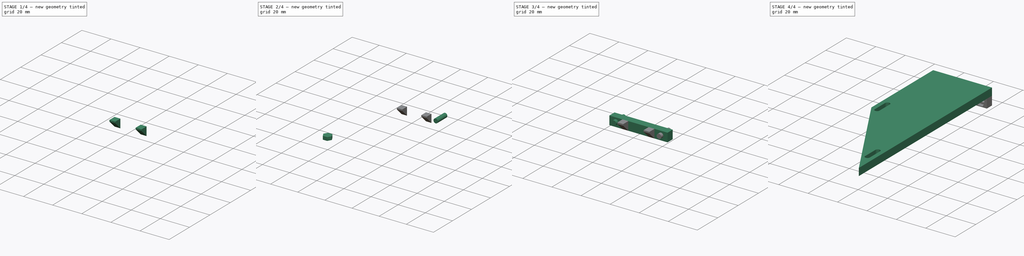
[diagram: build sequence overview — one tinted view per stage of 4, left to right]
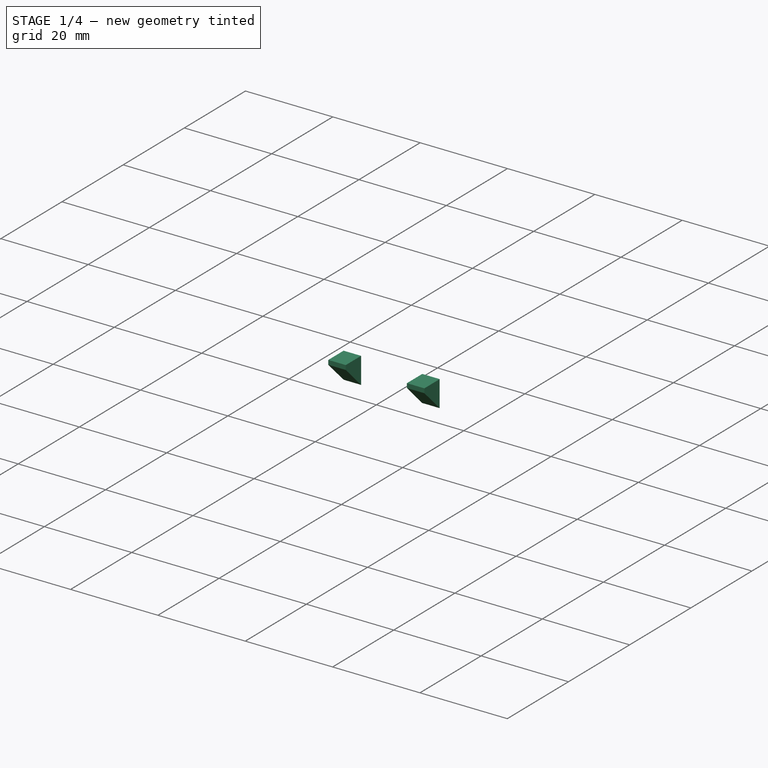
[diagram: stage 1 of 4 — iso view after this stage's code; geometry added in this stage tinted green]
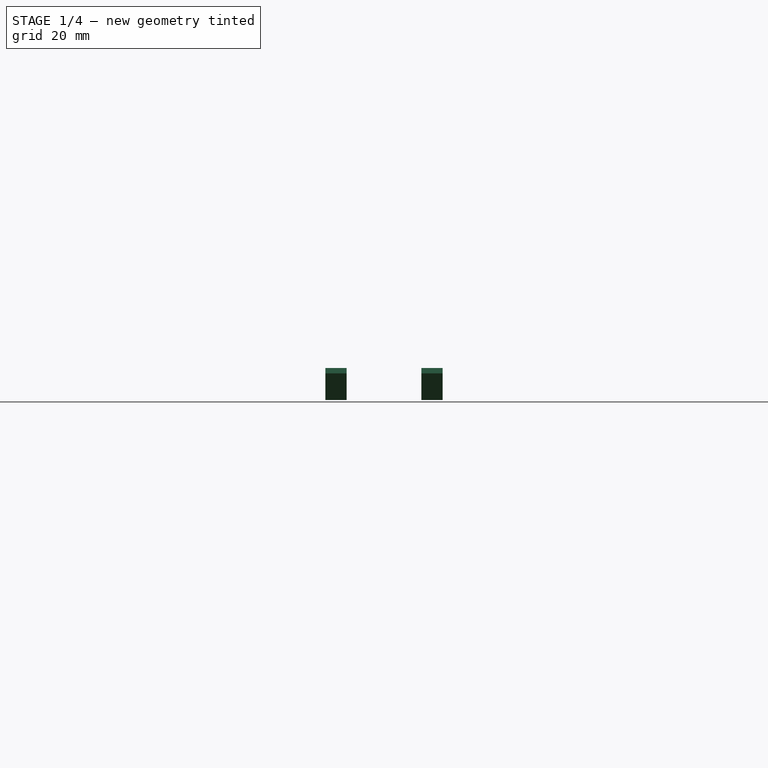
[diagram: stage 1 of 4 — front view after this stage's code; geometry added in this stage tinted green]
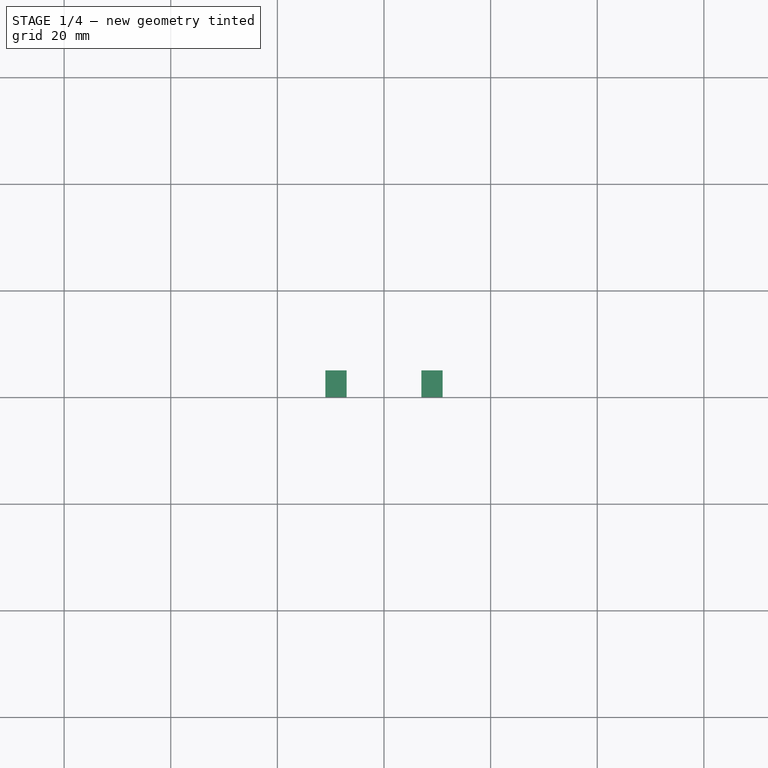
[diagram: stage 1 of 4 — top view after this stage's code; geometry added in this stage tinted green]
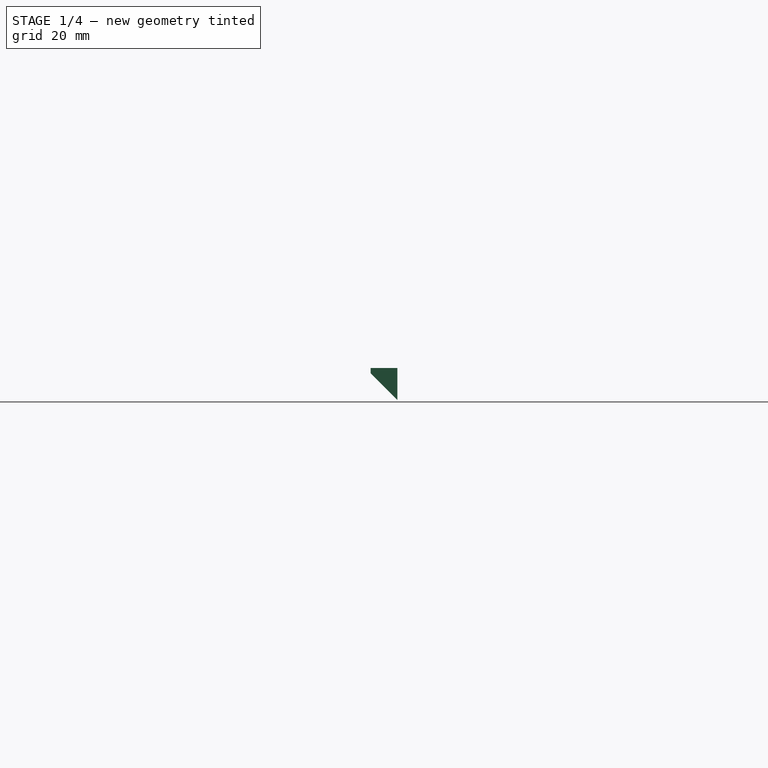
[diagram: stage 1 of 4 — right view after this stage's code; geometry added in this stage tinted green]
FCSTD DOCUMENT  (FreeCAD 0.18R14090 (Git))
Label: ExtruderDriveHolder3_Alt
License: All rights reserved
LicenseURL: http://en.wikipedia.org/wiki/All_rights_reserved
objects: Part::Box×3, Part::MultiFuse×3, Sketcher::SketchObject×2, PartDesign::Pad×2, PartDesign::Body×2, PartDesign::FeatureBase×2, Part::Cylinder×1, Part::Cut×1, Part::Chamfer×1, App::Part×1, Part::FeaturePython×1
note: 20 computed .brp shape members not serialized (recipe doc carries the construction recipe); baked Part::Feature solids carry a one-line shape summary decoded from their .brp

FEATURE [Part::Box] Box  label="StiffenerCube1"
  AttacherType = Attacher::AttachEngine3D
  Height = 6
  Length = 4
  Placement = pos=(9,60,-6) rot=(0,0,1;0rad)
  Width = 5
FEATURE [Part::Box] Box002  label="StiffenerCube2"
  AttacherType = Attacher::AttachEngine3D
  Height = 6
  Length = 4
  Placement = pos=(27,60,-6) rot=(0,0,1;0rad)
  Width = 5
FEATURE [Part::MultiFuse] Fusion001  label="StiffenerFusion"
  Shapes = -> [Box,Box002]
FEATURE [Part::Chamfer] Chamfer  label="StiffenerChamfer"
  Base = -> Fusion001
  Edges = 2 edges r=4.99: [Edge9,Edge21]
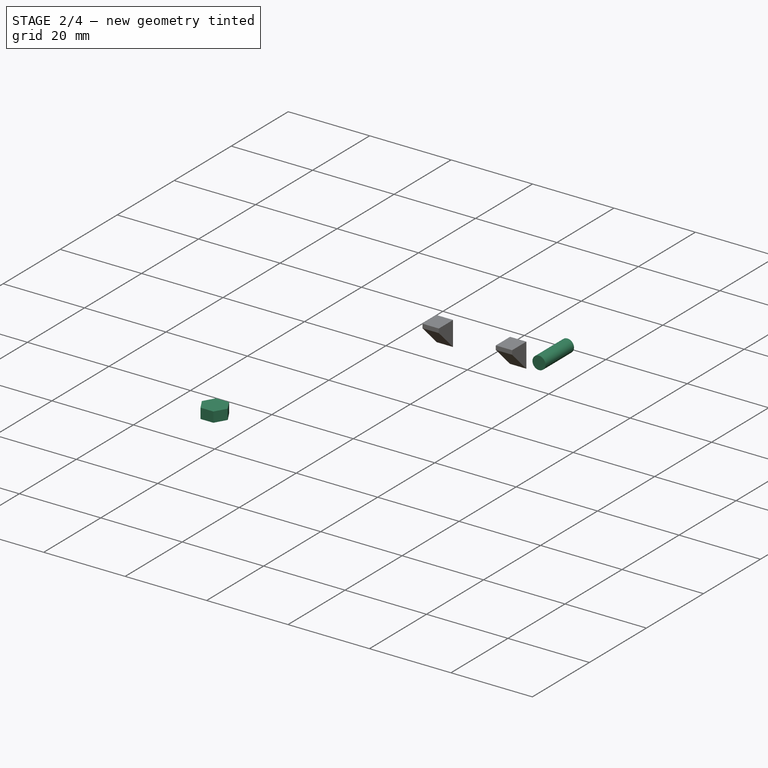
[diagram: stage 2 of 4 — iso view after this stage's code; geometry added in this stage tinted green]
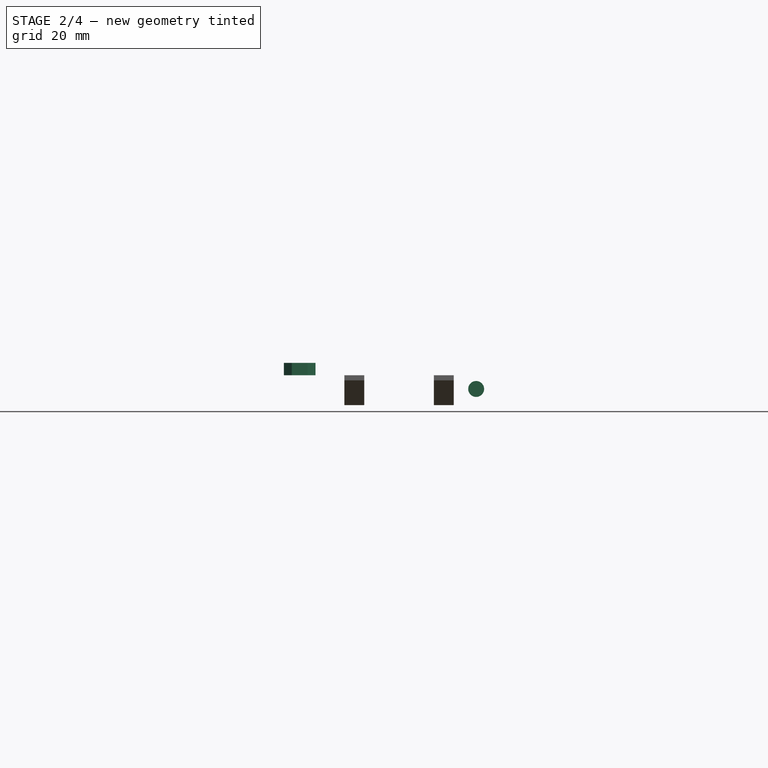
[diagram: stage 2 of 4 — front view after this stage's code; geometry added in this stage tinted green]
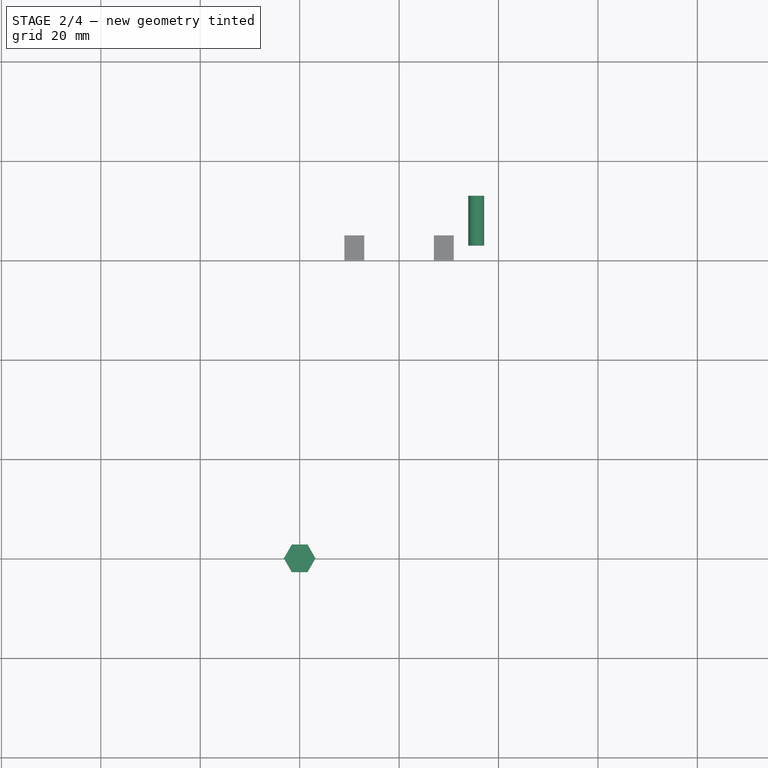
[diagram: stage 2 of 4 — top view after this stage's code; geometry added in this stage tinted green]
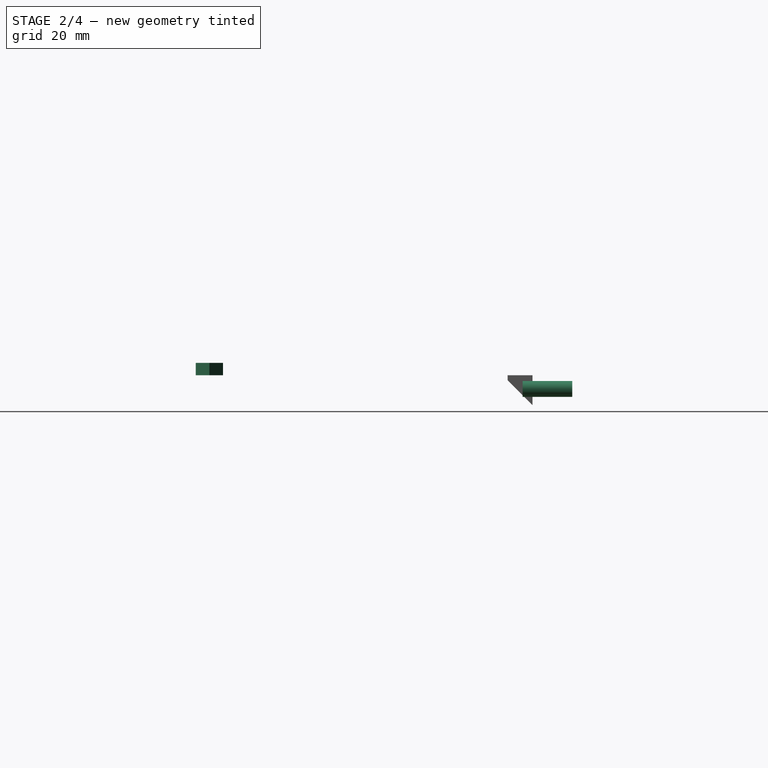
[diagram: stage 2 of 4 — right view after this stage's code; geometry added in this stage tinted green]
FEATURE [Part::Cylinder] Cylinder001  label="HolderClipScrewHole1"
  Angle = 360
  AttacherType = Attacher::AttachEngine3D
  Height = 10
  Placement = pos=(4.5,73,-2.75) rot=(1,0,0;1.5708rad)
  Radius = 1.6
FEATURE [Sketcher::SketchObject] Sketch002  label="NutBaseSketch"
  MapMode = 5
  Support = -> [XY_Plane002]
  sketch-geometry (7):
    g0: LineSegment StartX=1.58771 StartY=-2.75 StartZ=0 EndX=3.17543 EndY=3e-12 EndZ=0
    g1: LineSegment StartX=3.17543 StartY=3e-12 StartZ=0 EndX=1.58771 EndY=2.75 EndZ=0
    g2: LineSegment StartX=1.58771 StartY=2.75 StartZ=0 EndX=-1.58771 EndY=2.75 EndZ=0
    g3: LineSegment StartX=-1.58771 StartY=2.75 StartZ=0 EndX=-3.17543 EndY=2e-12 EndZ=0
    g4: LineSegment StartX=-3.17543 StartY=2e-12 StartZ=0 EndX=-1.58771 EndY=-2.75 EndZ=0
    g5: LineSegment StartX=-1.58771 StartY=-2.75 StartZ=0 EndX=1.58771 EndY=-2.75 EndZ=0
    g6: Circle [constr] CenterX=0 CenterY=0 CenterZ=0 NormalX=0 NormalY=0 NormalZ=1 AngleXU=0 Radius=3.17543
  constraints (16):
    c: Coincident(g0,g1)
    c: Coincident(g1,g2)
    c: Coincident(g2,g3)
    c: Coincident(g3,g4)
    c: Coincident(g4,g5)
    c: Coincident(g5,g0)
    c: Equal(g0, g1-g5) x5
    c: PointOnObject(g0,g6)
    c: PointOnObject(g1,g6)
    c: PointOnObject(g2,g6)
    c: PointOnObject(g3,g6)
    c: PointOnObject(g4,g6)
    c: PointOnObject(g5,g6)
    c: Coincident(g6,g-1)
    c: Horizontal(g2)
    c: Distance(g1,g0) = 5.5
FEATURE [PartDesign::Pad] Pad001  label="NutBasePad"
  Length = 2.5
  Length2 = 100
  Profile = -> Sketch002
  Type = 0
FEATURE [PartDesign::FeatureBase] Clone  label="HolderClipScrewHole2"
  BaseFeature = -> Cylinder001
  Placement = pos=(35.5,73,-2.75) rot=(1,0,0;1.5708rad)
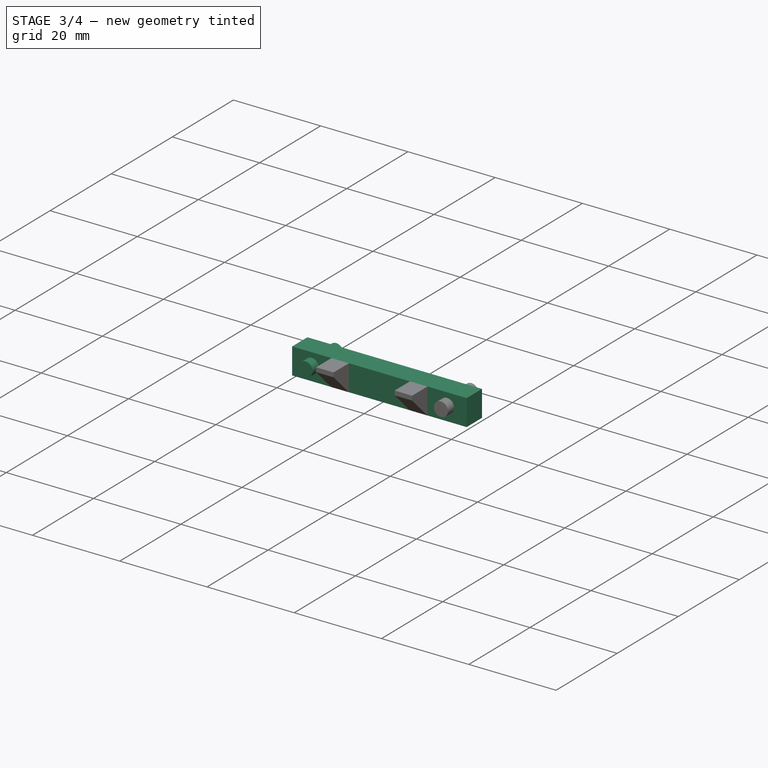
[diagram: stage 3 of 4 — iso view after this stage's code; geometry added in this stage tinted green]
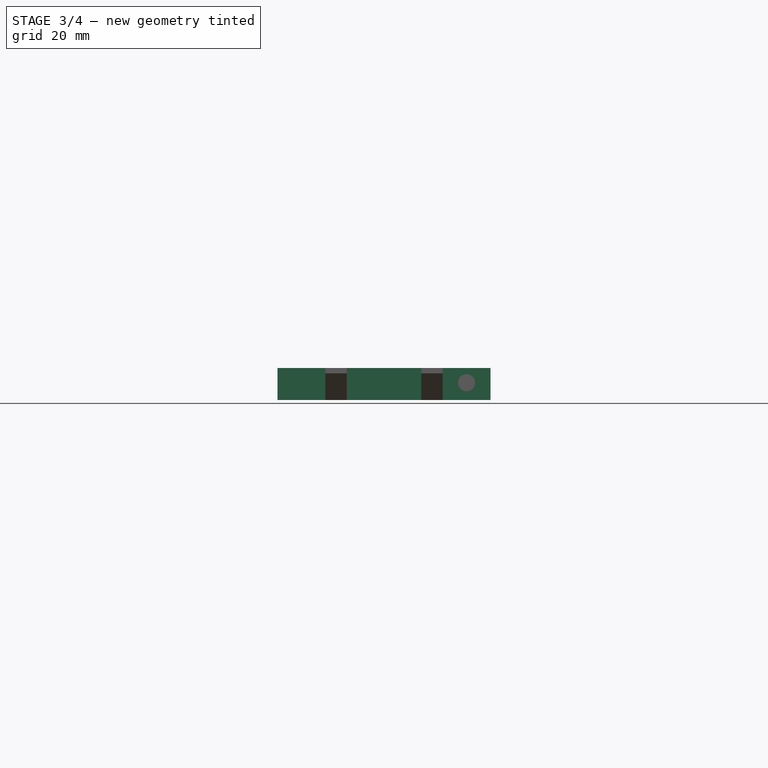
[diagram: stage 3 of 4 — front view after this stage's code; geometry added in this stage tinted green]
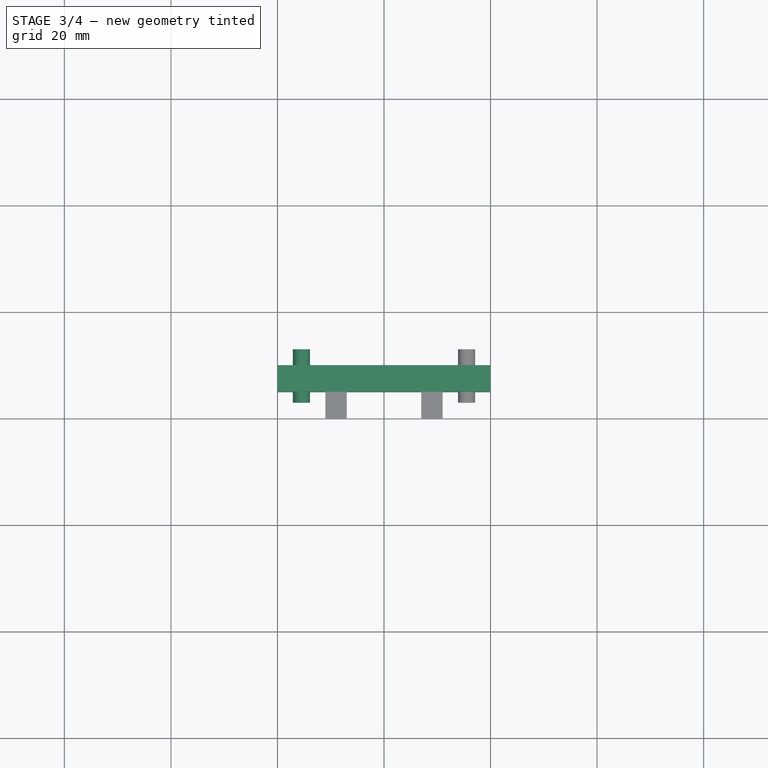
[diagram: stage 3 of 4 — top view after this stage's code; geometry added in this stage tinted green]
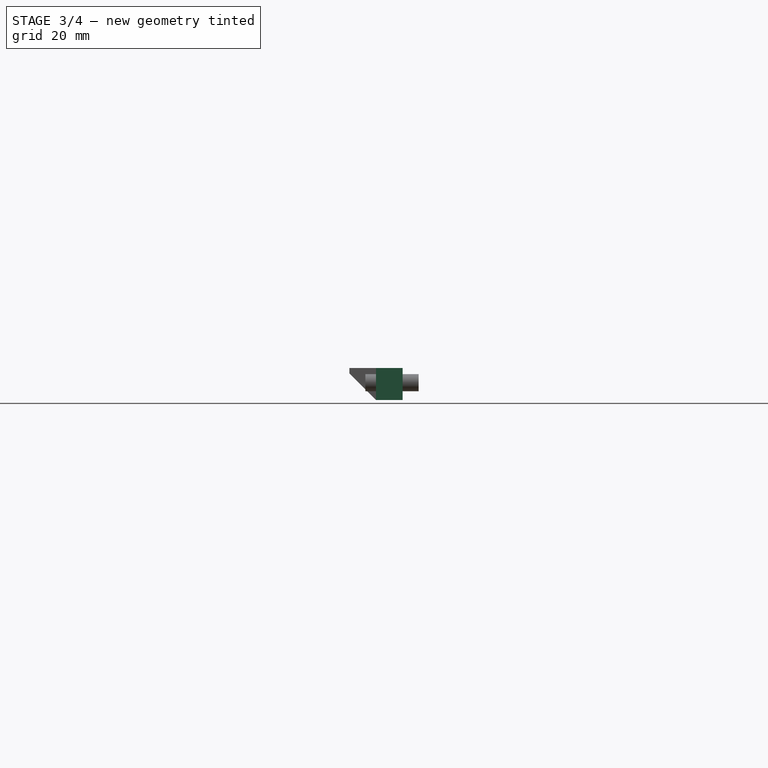
[diagram: stage 3 of 4 — right view after this stage's code; geometry added in this stage tinted green]
FEATURE [PartDesign::Body] Body  label="HolderBody"
  Group = -> [Sketch,Pad]
  Origin = -> Origin001
  Placement = pos=(0,-59.282,0) rot=(0,0,1;0rad)
  Tip = -> Pad
FEATURE [Part::Box] Box001  label="ExtruderClipCube"
  AttacherType = Attacher::AttachEngine3D
  Height = 5
  Length = 40
  Placement = pos=(0,65,0) rot=(-1,0,0;1.5708rad)
  Width = 6
FEATURE [PartDesign::Body] Body001  label="NutBody"
  Group = -> [Sketch002,Pad001]
  Origin = -> Origin002
  Placement = pos=(4.5,67.5,-2.75) rot=(1,0,0;1.5708rad)
  Tip = -> Pad001
FEATURE [PartDesign::FeatureBase] Clone001  label="NutClone"
  BaseFeature = -> Body001
  Placement = pos=(35.5,67.5,-2.75) rot=(1,0,0;1.5708rad)
FEATURE [Part::MultiFuse] Fusion  label="HolesFusion"
  Shapes = -> [Cylinder001,Body001,Clone001,Clone]
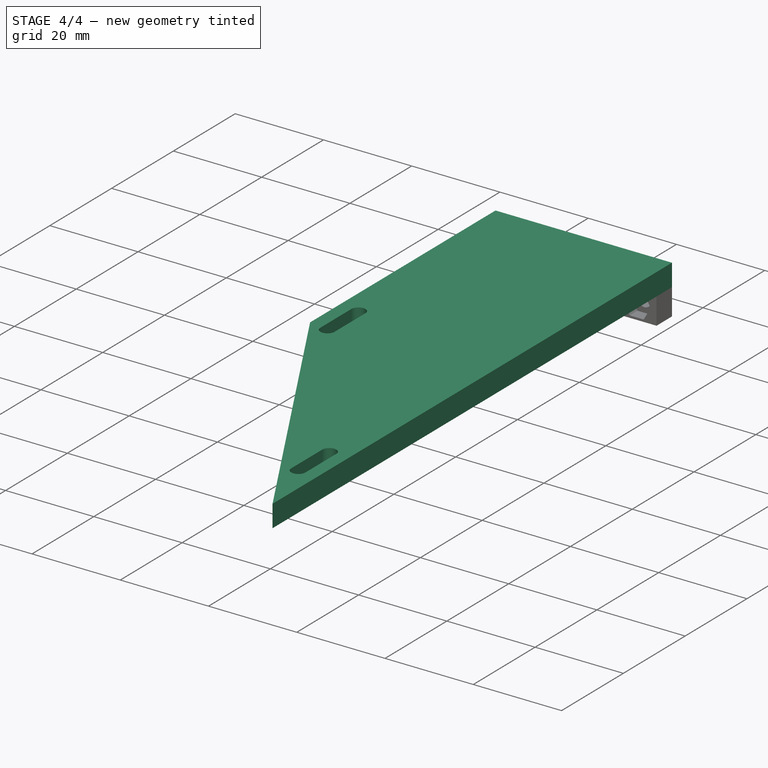
[diagram: stage 4 of 4 — iso view after this stage's code; geometry added in this stage tinted green]
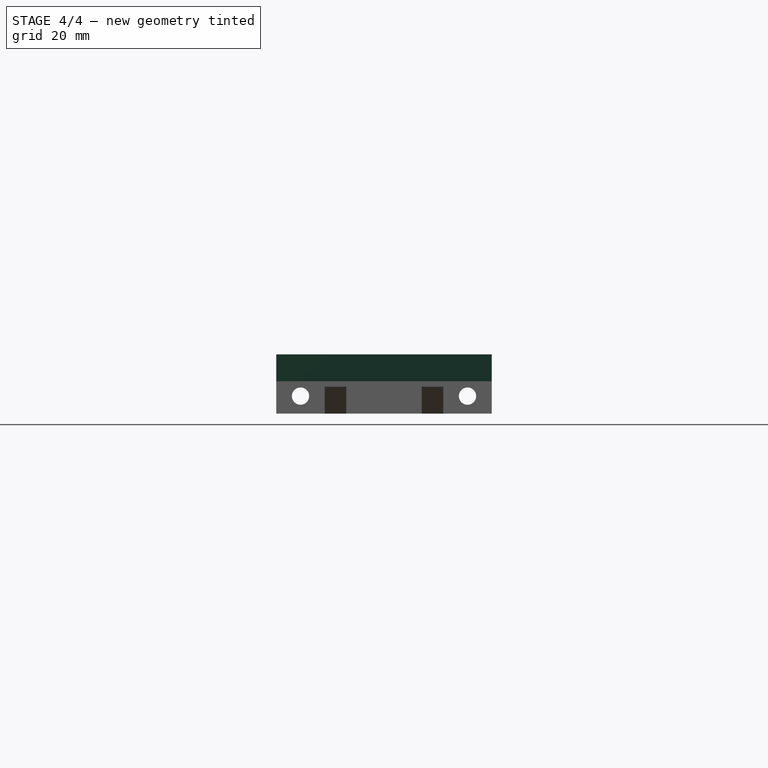
[diagram: stage 4 of 4 — front view after this stage's code; geometry added in this stage tinted green]
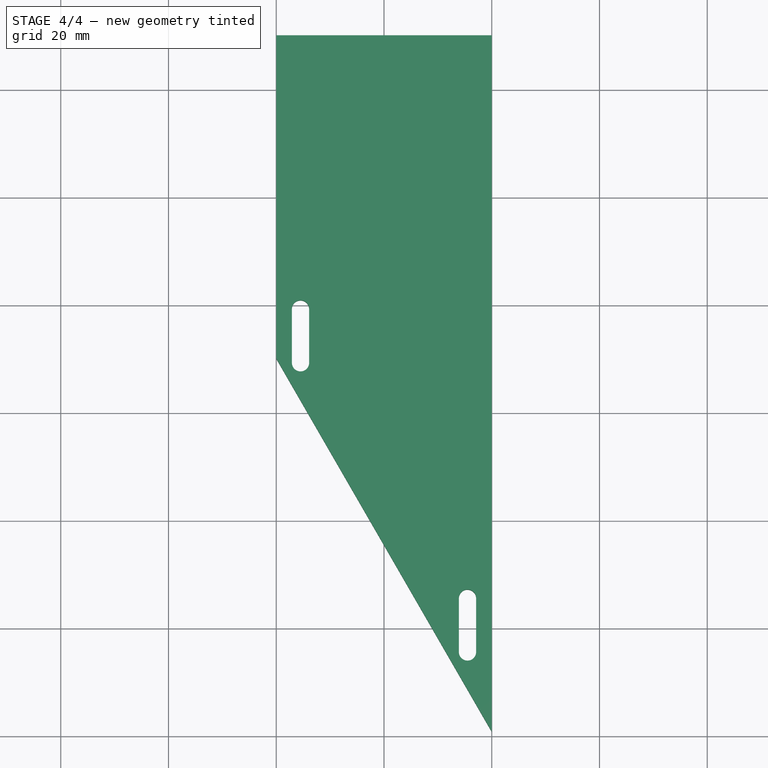
[diagram: stage 4 of 4 — top view after this stage's code; geometry added in this stage tinted green]
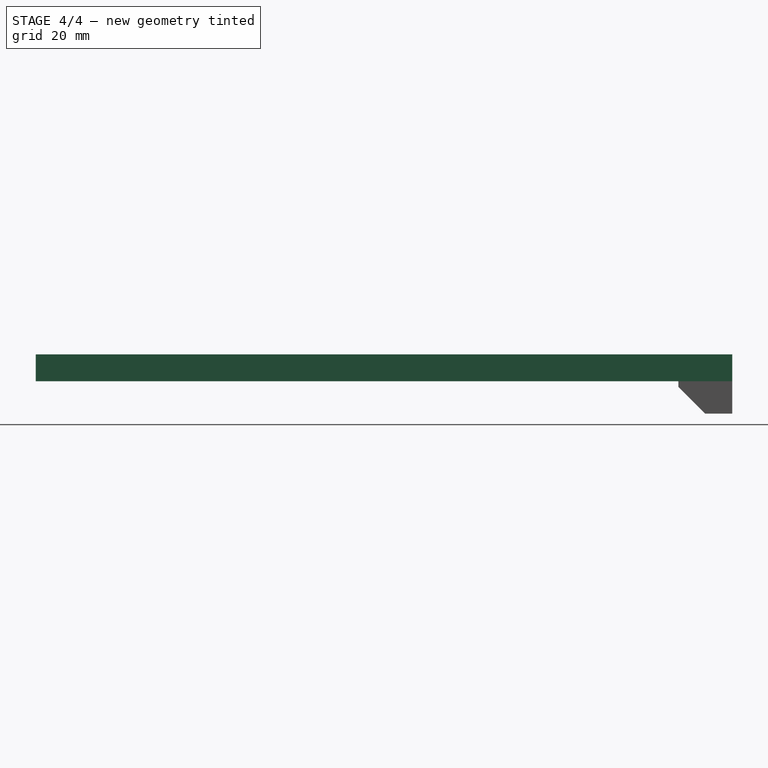
[diagram: stage 4 of 4 — right view after this stage's code; geometry added in this stage tinted green]
FEATURE [Sketcher::SketchObject] Sketch  label="HolderBaseSketch"
  MapMode = 5
  Support = -> [XY_Plane001]
  sketch-geometry (14):
    g0: LineSegment StartX=40 StartY=0 StartZ=0 EndX=40 EndY=129.282 EndZ=0
    g1: LineSegment StartX=40 StartY=129.282 StartZ=0 EndX=0 EndY=129.282 EndZ=0
    g2: LineSegment StartX=40 StartY=0 StartZ=0 EndX=0 EndY=69.282 EndZ=0
    g3: LineSegment StartX=0 StartY=129.282 StartZ=0 EndX=0 EndY=69.282 EndZ=0
    g4: ArcOfCircle CenterX=4.5 CenterY=78.4878 CenterZ=0 NormalX=0 NormalY=0 NormalZ=1 AngleXU=0 Radius=1.6 StartAngle=0 EndAngle=3.14159
    g5: ArcOfCircle CenterX=4.5 CenterY=68.4878 CenterZ=0 NormalX=0 NormalY=0 NormalZ=1 AngleXU=0 Radius=1.6 StartAngle=3.14159 EndAngle=6.28319
    g6: LineSegment StartX=2.9 StartY=78.4878 StartZ=0 EndX=2.9 EndY=68.4878 EndZ=0
    g7: LineSegment StartX=6.1 StartY=78.4878 StartZ=0 EndX=6.1 EndY=68.4878 EndZ=0
    g8: ArcOfCircle CenterX=35.5 CenterY=24.7942 CenterZ=0 NormalX=0 NormalY=0 NormalZ=1 AngleXU=0 Radius=1.6 StartAngle=0 EndAngle=3.14159
    g9: ArcOfCircle CenterX=35.5 CenterY=14.7942 CenterZ=0 NormalX=0 NormalY=0 NormalZ=1 AngleXU=0 Radius=1.6 StartAngle=3.14159 EndAngle=6.28319
    g10: LineSegment StartX=33.9 StartY=24.7942 StartZ=0 EndX=33.9 EndY=14.7942 EndZ=0
    g11: LineSegment StartX=37.1 StartY=24.7942 StartZ=0 EndX=37.1 EndY=14.7942 EndZ=0
    g12: LineSegment [constr] StartX=4.5 StartY=68.4878 StartZ=0 EndX=4.5 EndY=61.4878 EndZ=0
    g13: LineSegment [constr] StartX=35.5 StartY=14.7942 StartZ=0 EndX=35.5 EndY=7.79423 EndZ=0
  constraints (38):
    c: Coincident(g0,g1)
    c: Horizontal(g1)
    c: Vertical(g0)
    c: Distance(g1) = 40
    c: Coincident(g3,g1)
    c: Vertical(g3)
    c: Angle(g2,g3) = 2.61799
    c: Coincident(g0,g2)
    c: Tangent(g4,g7) = 1.5708
    c: Tangent(g4,g6) = -1.5708
    c: Tangent(g6,g5) = -1.5708
    c: Tangent(g7,g5) = 1.5708
    c: Vertical(g6)
    c: Equal(g4,g5)
    c: Tangent(g8,g11) = 1.5708
    c: Tangent(g8,g10) = -1.5708
    c: Tangent(g10,g9) = -1.5708
    c: Tangent(g11,g9) = 1.5708
    c: Vertical(g10)
    c: Equal(g8,g9)
    c: DistanceX(g4,g8) = 31
    c: Equal(g4,g8)
    c: Radius(g4) = 1.6
    c: Distance(g8,g0) = 4.5
    c: Coincident(g12,g5)
    c: Vertical(g12)
    c: Coincident(g13,g9)
    c: PointOnObject(g13,g2)
    c: Vertical(g13)
    c: Distance(g12) = 7
    c: Distance(g13) = 7
    c: Distance(g4,g5) = 10
    c: Distance(g9,g8) = 10
    c: Coincident(g3,g2)
    c: PointOnObject(g12,g2)
    c: PointOnObject(g2,g-2)
    c: PointOnObject(g0,g-1)
    c: Distance(g3) = 60
FEATURE [PartDesign::Pad] Pad  label="HolderBasePad"
  Length = 5
  Length2 = 100
  Profile = -> Sketch
  Type = 0
FEATURE [Part::Cut] Cut  label="ExtruderClipCut"
  Base = -> Box001
  Tool = -> Fusion
FEATURE [Part::MultiFuse] Fusion002  label="HolderFusion"
  Shapes = -> [Body,Cut,Chamfer]
FEATURE [App::Part] Part  label="HolderPart"
  Group = -> [Body,Box001,Cylinder001,Body001,Clone001,Clone,Fusion,Cut,Box,Box002,Fusion001,Chamfer,Fusion002]
  License = CC BY 3.0
  LicenseURL = http://creativecommons.org/licenses/by/3.0/
  Origin = -> Origin
FEATURE [Part::FeaturePython] refine  label="Holder_Refined"  # WARN: FeaturePython — macro-defined, semantics opaque (R4)
  Base = -> Fusion002
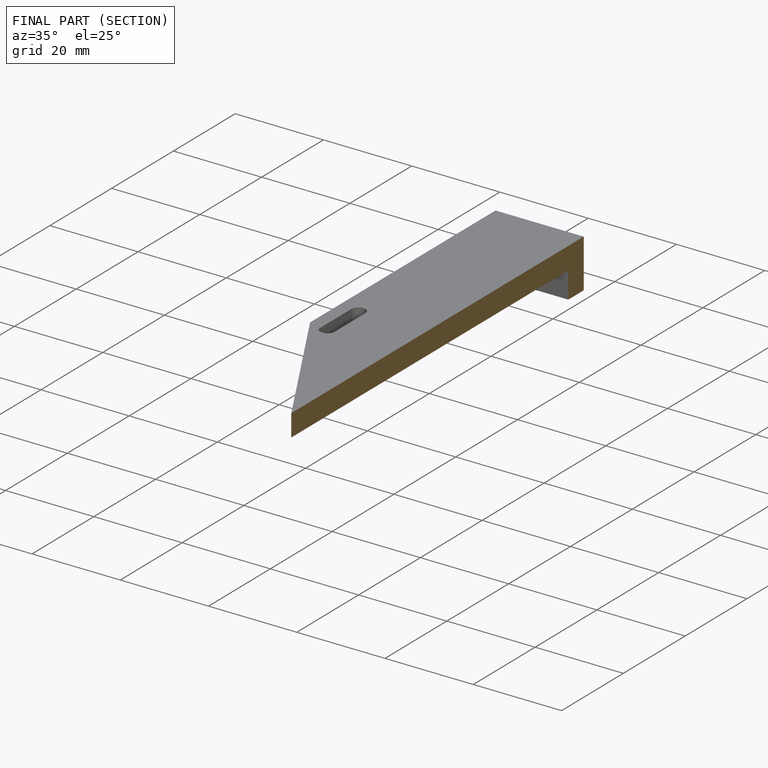
[diagram: finished part — half-section view (interior)]
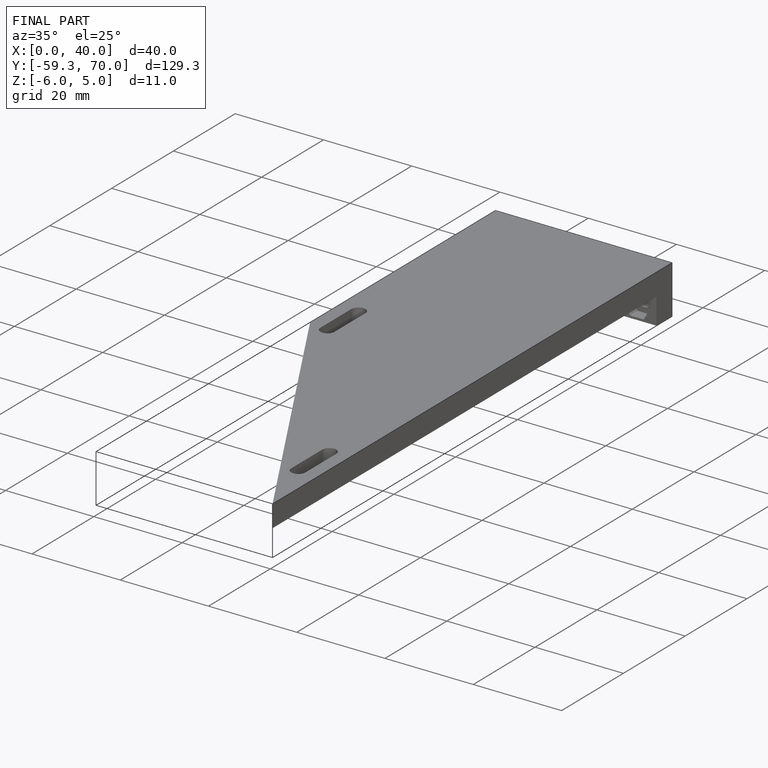
[diagram: finished part — iso view with bounding-box wireframe]
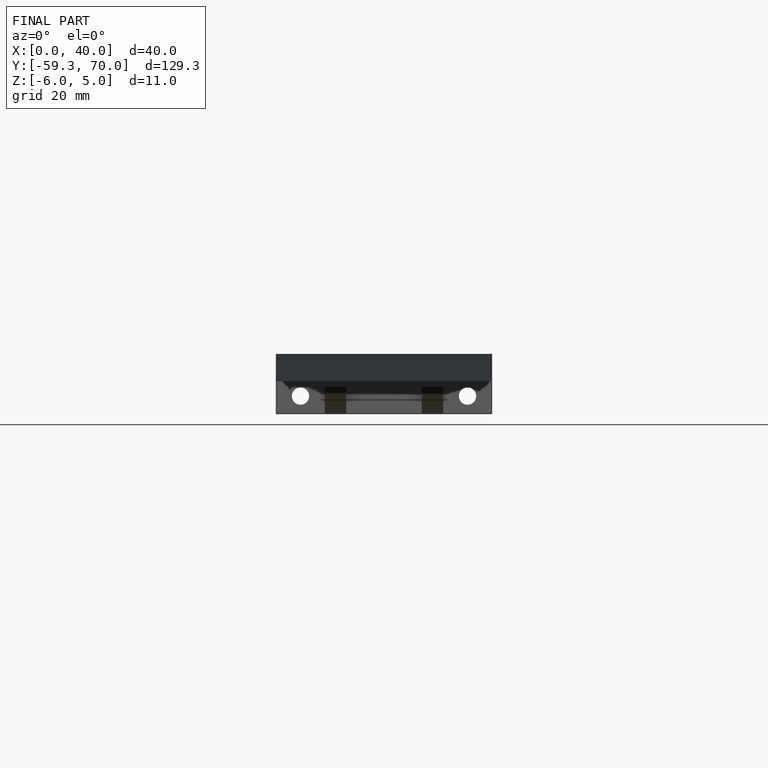
[diagram: finished part — front view with bounding-box wireframe]
